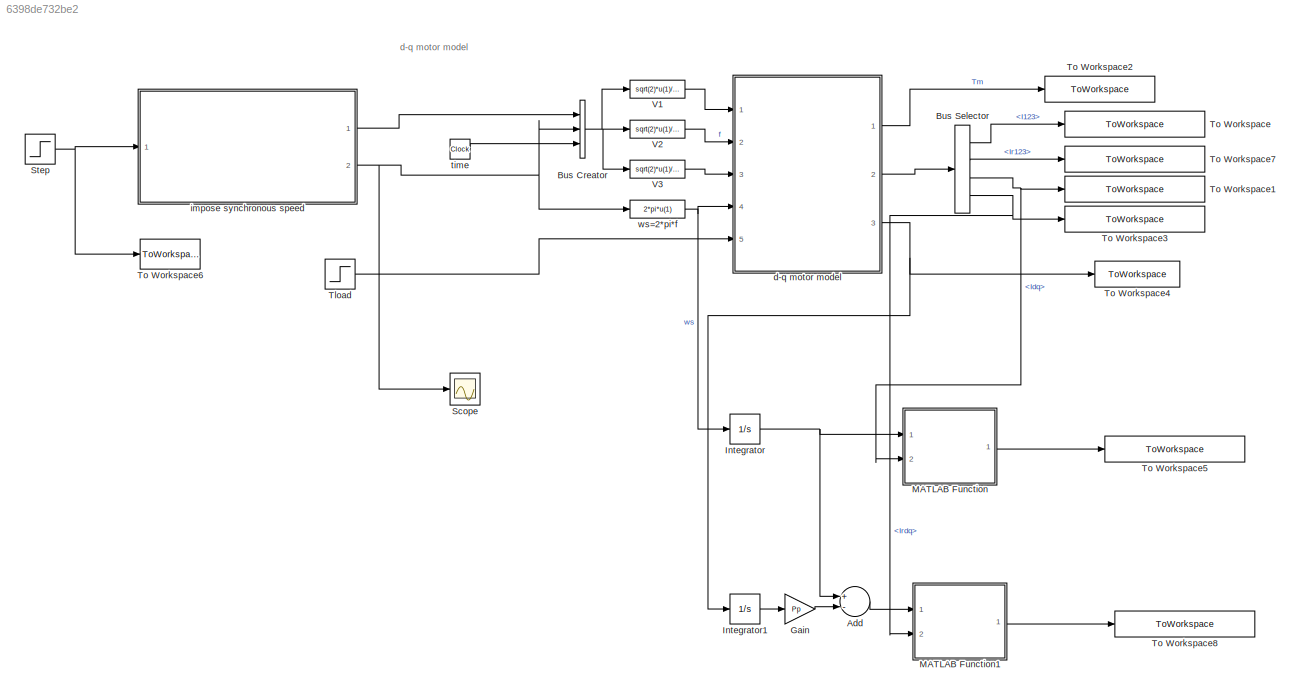
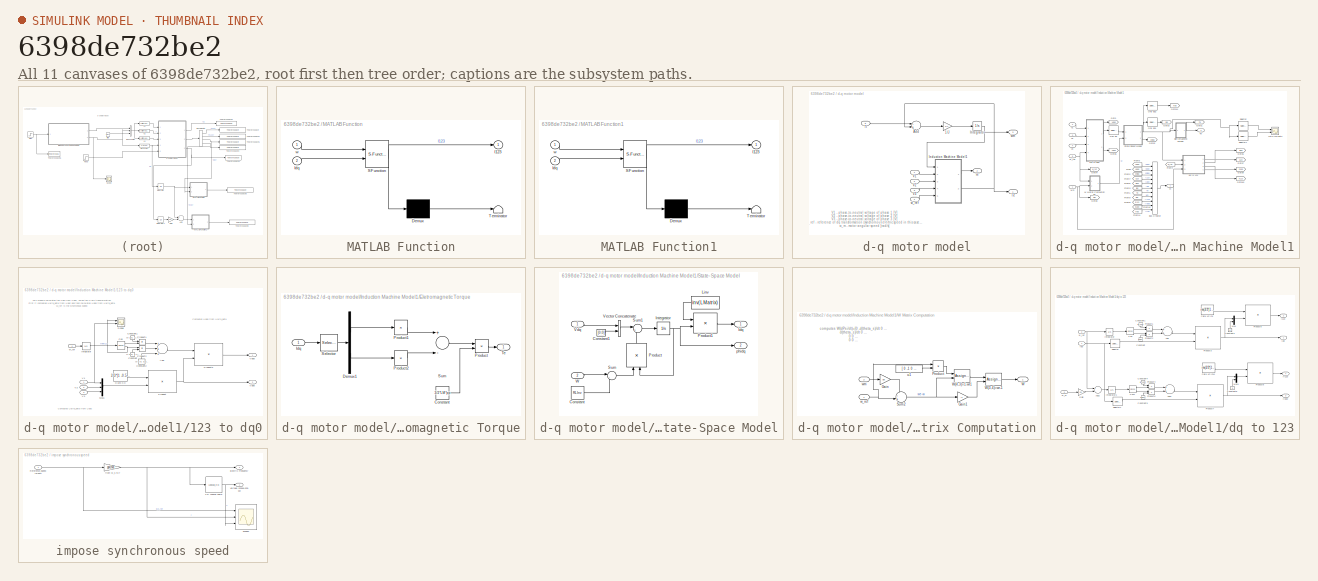
[diagram: thumbnail index - all 11 canvases of the model, root first then tree order]
MODEL slx_6398de732be2
KIND model
CONFIG AbsTol = auto
CONFIG EnableMultiTasking = off
CONFIG FixedStep = auto
CONFIG MaxStep = 1e-4
CONFIG MinStep = auto
CONFIG RelTol = 1e-4
CONFIG SampleTimeConstraint = Unconstrained
CONFIG Solver = VariableStepAuto
CONFIG SolverName = VariableStepAuto
CONFIG StartTime = 0.0
CONFIG StopTime = 10
BLOCK [Sum] Add
  InputSameDT = off
  Inputs = +-
  OutDataTypeStr = Inherit: Inherit via internal rule
  Ports = [2, 1]
  SaturateOnIntegerOverflow = off
BLOCK [BusCreator] Bus Creator
  DisplayOption = bar
  InheritFromInputs = on
  Inputs = 3
  Ports = [3, 1]
BLOCK [BusSelector] Bus Selector
  OutputAsBus = off
  OutputSignals = I123,Ir123,Idq,Irdq
  Ports = [1, 4]
BLOCK [Gain] Gain
  Gain = Pp
  OutDataTypeStr = Inherit: Inherit via internal rule
  ParamDataTypeStr = Inherit: Inherit via internal rule
  SaturateOnIntegerOverflow = off
BLOCK [Integrator] Integrator
  Ports = [1, 1]
BLOCK [Integrator] Integrator1
  Ports = [1, 1]
BLOCK [SubSystem] MATLAB Function
  ErrorFcn = Stateflow.Translate.translate
  PermitHierarchicalResolution = ExplicitOnly
  Ports = [2, 1]
  RequestExecContextInheritance = off
  SFBlockType = MATLAB Function
  TreatAsAtomicUnit = on
BLOCK [Demux] MATLAB Function/ Demux 
  Outputs = 1
  Ports = [1, 1]
BLOCK [S-Function] MATLAB Function/ SFunction 
  EnableBusSupport = on
  FunctionName = sf_sfun
  PortCounts = [2 2]
  Ports = [2, 2]
  SFcnIsStateOwnerBlock = off
  SFunctionDeploymentMode = off
  Tag = Stateflow S-Function 2
BLOCK [Terminator] MATLAB Function/ Terminator 
BLOCK [Outport] MATLAB Function/I123
  IconDisplay = Port number
BLOCK [Inport] MATLAB Function/Idq
  IconDisplay = Port number
  Port = 2
BLOCK [Inport] MATLAB Function/w
  IconDisplay = Port number
BLOCK [SubSystem] MATLAB Function1
  ErrorFcn = Stateflow.Translate.translate
  PermitHierarchicalResolution = ExplicitOnly
  Ports = [2, 1]
  RequestExecContextInheritance = off
  SFBlockType = MATLAB Function
  TreatAsAtomicUnit = on
BLOCK [Demux] MATLAB Function1/ Demux 
  Outputs = 1
  Ports = [1, 1]
BLOCK [S-Function] MATLAB Function1/ SFunction 
  EnableBusSupport = on
  FunctionName = sf_sfun
  PortCounts = [2 2]
  Ports = [2, 2]
  SFcnIsStateOwnerBlock = off
  SFunctionDeploymentMode = off
  Tag = Stateflow S-Function 1
BLOCK [Terminator] MATLAB Function1/ Terminator 
BLOCK [Outport] MATLAB Function1/I123
  IconDisplay = Port number
BLOCK [Inport] MATLAB Function1/Idq
  IconDisplay = Port number
  Port = 2
BLOCK [Inport] MATLAB Function1/w
  IconDisplay = Port number
BLOCK [Scope] Scope
  Floating = off
  NumInputPorts = 1
  Ports = [1]
  ScopeSpecificationString = Simulink.scopes.TimeScopeBlockCfg('CurrentConfiguration', extmgr.ConfigurationSet(extmgr.Configuration('Core','General UI',true),extmgr.Configuration('Core','Source UI',true),extmgr.Configuration('Sources','WiredSimulink',true,'DataLoggingVariableName','ScopeData1'),extmgr.Configuration('Visuals','Time Domain',true,'SerializedDisplays',{struct('MinYLimReal','-15.625','MaxYLimReal','140.625','YLabe...<+1383ch>
BLOCK [Step] Step
  After = 3750
  SampleTime = 0
BLOCK [Step] Tload 
  After = 40
  SampleTime = 0
  Time = 5
BLOCK [ToWorkspace] To Workspace
  FixptAsFi = on
  MaxDataPoints = inf
  Ports = [1]
  SampleTime = -1
  SaveFormat = Timeseries
  VariableName = stator_currents
BLOCK [ToWorkspace] To Workspace1
  FixptAsFi = on
  MaxDataPoints = inf
  Ports = [1]
  SampleTime = -1
  SaveFormat = Timeseries
  VariableName = idq_model
BLOCK [ToWorkspace] To Workspace2
  FixptAsFi = on
  MaxDataPoints = inf
  Ports = [1]
  SampleTime = -1
  SaveFormat = Timeseries
  VariableName = Torque
BLOCK [ToWorkspace] To Workspace3
  FixptAsFi = on
  MaxDataPoints = inf
  Ports = [1]
  SampleTime = -1
  SaveFormat = Timeseries
  VariableName = irdq_model
BLOCK [ToWorkspace] To Workspace4
  FixptAsFi = on
  MaxDataPoints = inf
  Ports = [1]
  SampleTime = -1
  SaveFormat = Timeseries
  VariableName = speed
BLOCK [ToWorkspace] To Workspace5
  FixptAsFi = on
  MaxDataPoints = inf
  Ports = [1]
  SampleTime = -1
  SaveFormat = Timeseries
  VariableName = my_I123
BLOCK [ToWorkspace] To Workspace6
  FixptAsFi = on
  MaxDataPoints = inf
  Ports = [1]
  SampleTime = -1
  SaveFormat = Timeseries
  VariableName = ref_speed
BLOCK [ToWorkspace] To Workspace7
  FixptAsFi = on
  MaxDataPoints = inf
  Ports = [1]
  SampleTime = -1
  SaveFormat = Timeseries
  VariableName = rotor_currents
BLOCK [ToWorkspace] To Workspace8
  FixptAsFi = on
  MaxDataPoints = inf
  Ports = [1]
  SampleTime = -1
  SaveFormat = Timeseries
  VariableName = my_Ir123
BLOCK [Fcn] V1
  Expr = sqrt(2)*u(1)/sqrt(3)*cos(2*pi*u(2)*u(3))
BLOCK [Fcn] V2
  Expr = sqrt(2)*u(1)/sqrt(3)*cos(2*pi*u(2)*u(3)-2*pi/3)
BLOCK [Fcn] V3
  Expr = sqrt(2)*u(1)/sqrt(3)*cos(2*pi*u(2)*u(3)+2*pi/3)
BLOCK [SubSystem] d-q motor model
  Ports = [5, 3]
  RequestExecContextInheritance = off
BLOCK [Gain] d-q motor model/1//J
  Gain = 1/J
  OutDataTypeStr = Inherit: Inherit via internal rule
  ParamDataTypeStr = Inherit: Inherit via internal rule
  SaturateOnIntegerOverflow = off
BLOCK [Sum] d-q motor model/Add
  InputSameDT = off
  Inputs = -+
  OutDataTypeStr = Inherit: Inherit via internal rule
  Ports = [2, 1]
  SaturateOnIntegerOverflow = off
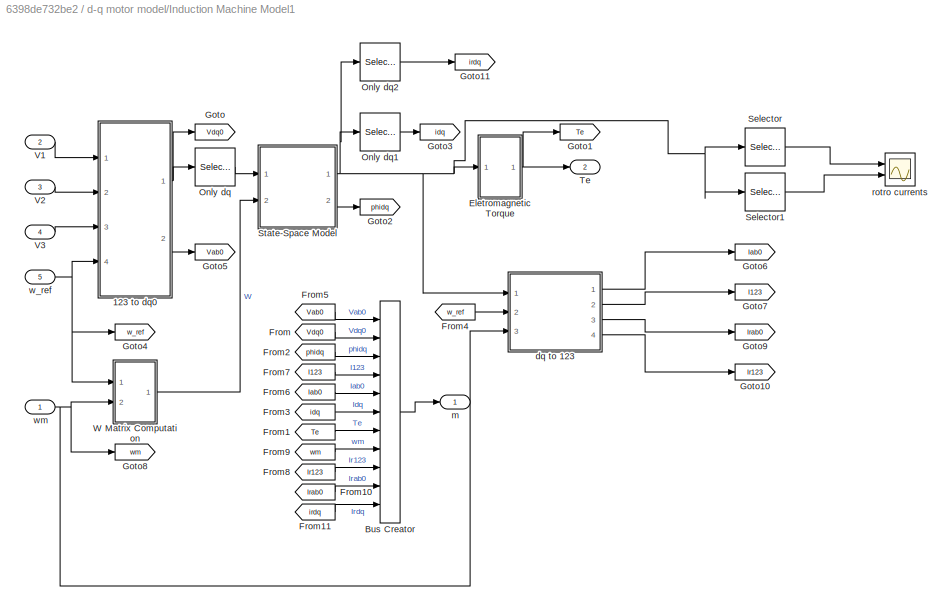
BLOCK [SubSystem] d-q motor model/Induction Machine Model1
  Ports = [5, 2]
  RequestExecContextInheritance = off
BLOCK [SubSystem] d-q motor model/Induction Machine Model1/123 to dq0
  Ports = [4, 2]
  RequestExecContextInheritance = off
BLOCK [Sum] d-q motor model/Induction Machine Model1/123 to dq0/Add
  InputSameDT = off
  Inputs = +++
  OutDataTypeStr = Inherit: Inherit via internal rule
  Ports = [3, 1]
  SaturateOnIntegerOverflow = off
BLOCK [Constant] d-q motor model/Induction Machine Model1/123 to dq0/Clark KC
  Value = 2/3*[1 -0.5 -0.5; 0 sqrt(3)/2 -sqrt(3)/2; 1/2 1/2 1/2]
BLOCK [Constant] d-q motor model/Induction Machine Model1/123 to dq0/Constant
  Value = [1 0 0; 0 1 0; 0 0 0]
BLOCK [Constant] d-q motor model/Induction Machine Model1/123 to dq0/Constant1
  Value = [0 1 0; -1 0 0; 0 0 0]
BLOCK [Constant] d-q motor model/Induction Machine Model1/123 to dq0/Constant2
  Value = [0 0 0; 0 0 0; 0 0 1]
BLOCK [Trigonometry] d-q motor model/Induction Machine Model1/123 to dq0/Cos
  Operator = sincos
  Ports = [1, 2]
BLOCK [Integrator] d-q motor model/Induction Machine Model1/123 to dq0/Integrator
  Ports = [1, 1]
BLOCK [Mux] d-q motor model/Induction Machine Model1/123 to dq0/Mux1
  DisplayOption = bar
  Inputs = 3
  Ports = [3, 1]
BLOCK [Product] d-q motor model/Induction Machine Model1/123 to dq0/Product
  InputSameDT = off
  Multiplication = Matrix(*)
  OutDataTypeStr = Inherit: Inherit via internal rule
  Ports = [2, 1]
  RndMeth = Floor
  SaturateOnIntegerOverflow = off
BLOCK [Product] d-q motor model/Induction Machine Model1/123 to dq0/Product1
  InputSameDT = off
  OutDataTypeStr = Inherit: Inherit via internal rule
  Ports = [2, 1]
  RndMeth = Floor
  SaturateOnIntegerOverflow = off
BLOCK [Product] d-q motor model/Induction Machine Model1/123 to dq0/Product2
  InputSameDT = off
  OutDataTypeStr = Inherit: Inherit via internal rule
  Ports = [2, 1]
  RndMeth = Floor
  SaturateOnIntegerOverflow = off
BLOCK [Product] d-q motor model/Induction Machine Model1/123 to dq0/Product3
  InputSameDT = off
  Multiplication = Matrix(*)
  OutDataTypeStr = Inherit: Inherit via internal rule
  Ports = [2, 1]
  RndMeth = Floor
  SaturateOnIntegerOverflow = off
BLOCK [Scope] d-q motor model/Induction Machine Model1/123 to dq0/Scope
  Floating = off
  NumInputPorts = 2
  Ports = [2]
  ScopeSpecificationString = Simulink.scopes.TimeScopeBlockCfg('CurrentConfiguration', extmgr.ConfigurationSet(extmgr.Configuration('Core','General UI',true),extmgr.Configuration('Core','Source UI',true),extmgr.Configuration('Sources','WiredSimulink',true,'DataLoggingVariableName','ScopeData4'),extmgr.Configuration('Visuals','Time Domain',true,'SerializedDisplays',{struct('MinYLimReal','-76.99014','MaxYLimReal','76.91085','YL...<+1475ch>
BLOCK [Inport] d-q motor model/Induction Machine Model1/123 to dq0/V1
  IconDisplay = Port number
BLOCK [Inport] d-q motor model/Induction Machine Model1/123 to dq0/V2
  IconDisplay = Port number
  Port = 2
BLOCK [Inport] d-q motor model/Induction Machine Model1/123 to dq0/V3
  IconDisplay = Port number
  Port = 3
BLOCK [Outport] d-q motor model/Induction Machine Model1/123 to dq0/Vab0
  IconDisplay = Port number
  Port = 2
  VectorParamsAs1DForOutWhenUnconnected = off
BLOCK [Outport] d-q motor model/Induction Machine Model1/123 to dq0/Vdq0
  IconDisplay = Port number
  VectorParamsAs1DForOutWhenUnconnected = off
BLOCK [Inport] d-q motor model/Induction Machine Model1/123 to dq0/w_ref
  IconDisplay = Port number
  Port = 4
BLOCK [BusCreator] d-q motor model/Induction Machine Model1/Bus Creator
  DisplayOption = bar
  InheritFromInputs = on
  Inputs = 11
  Ports = [11, 1]
BLOCK [SubSystem] d-q motor model/Induction Machine Model1/Eletromagnetic Torque
  Ports = [1, 1]
  RequestExecContextInheritance = off
BLOCK [Constant] d-q motor model/Induction Machine Model1/Eletromagnetic Torque/Constant
  Value = 3/2*LM*pp
BLOCK [Demux] d-q motor model/Induction Machine Model1/Eletromagnetic Torque/Demux1
  DisplayOption = bar
  Outputs = 2
  Ports = [1, 2]
BLOCK [Inport] d-q motor model/Induction Machine Model1/Eletromagnetic Torque/Idq
  IconDisplay = Port number
BLOCK [Product] d-q motor model/Induction Machine Model1/Eletromagnetic Torque/Product
  InputSameDT = off
  OutDataTypeStr = Inherit: Inherit via internal rule
  Ports = [2, 1]
  RndMeth = Floor
  SaturateOnIntegerOverflow = off
BLOCK [Product] d-q motor model/Induction Machine Model1/Eletromagnetic Torque/Product1
  InputSameDT = off
  Inputs = 1
  OutDataTypeStr = Inherit: Inherit via internal rule
  Ports = [1, 1]
  RndMeth = Floor
  SaturateOnIntegerOverflow = off
BLOCK [Product] d-q motor model/Induction Machine Model1/Eletromagnetic Torque/Product2
  InputSameDT = off
  Inputs = 1
  OutDataTypeStr = Inherit: Inherit via internal rule
  Ports = [1, 1]
  RndMeth = Floor
  SaturateOnIntegerOverflow = off
BLOCK [Selector] d-q motor model/Induction Machine Model1/Eletromagnetic Torque/Selector
  IndexOptions = Index vector (dialog)
  Indices = [2 3 1 4]
  InputPortWidth = 4
  OutputSizes = 1
  Ports = [1, 1]
BLOCK [Sum] d-q motor model/Induction Machine Model1/Eletromagnetic Torque/Sum
  InputSameDT = off
  Inputs = +-
  OutDataTypeStr = Inherit: Inherit via internal rule
  Ports = [2, 1]
  SaturateOnIntegerOverflow = off
BLOCK [Outport] d-q motor model/Induction Machine Model1/Eletromagnetic Torque/Te
  IconDisplay = Port number
  VectorParamsAs1DForOutWhenUnconnected = off
BLOCK [From] d-q motor model/Induction Machine Model1/From
  GotoTag = Vdq0
BLOCK [From] d-q motor model/Induction Machine Model1/From1
  GotoTag = Te
BLOCK [From] d-q motor model/Induction Machine Model1/From10
  GotoTag = Irab0
BLOCK [From] d-q motor model/Induction Machine Model1/From11
  GotoTag = irdq
BLOCK [From] d-q motor model/Induction Machine Model1/From2
  GotoTag = phidq
BLOCK [From] d-q motor model/Induction Machine Model1/From3
  GotoTag = idq
BLOCK [From] d-q motor model/Induction Machine Model1/From4
  GotoTag = w_ref
BLOCK [From] d-q motor model/Induction Machine Model1/From5
  GotoTag = Vab0
BLOCK [From] d-q motor model/Induction Machine Model1/From6
  GotoTag = Iab0
BLOCK [From] d-q motor model/Induction Machine Model1/From7
  GotoTag = I123
BLOCK [From] d-q motor model/Induction Machine Model1/From8
  GotoTag = Ir123
BLOCK [From] d-q motor model/Induction Machine Model1/From9
  GotoTag = wm
BLOCK [Goto] d-q motor model/Induction Machine Model1/Goto
  GotoTag = Vdq0
BLOCK [Goto] d-q motor model/Induction Machine Model1/Goto1
  GotoTag = Te
BLOCK [Goto] d-q motor model/Induction Machine Model1/Goto10
  GotoTag = Ir123
BLOCK [Goto] d-q motor model/Induction Machine Model1/Goto11
  GotoTag = irdq
BLOCK [Goto] d-q motor model/Induction Machine Model1/Goto2
  GotoTag = phidq
BLOCK [Goto] d-q motor model/Induction Machine Model1/Goto3
  GotoTag = idq
BLOCK [Goto] d-q motor model/Induction Machine Model1/Goto4
  GotoTag = w_ref
BLOCK [Goto] d-q motor model/Induction Machine Model1/Goto5
  GotoTag = Vab0
BLOCK [Goto] d-q motor model/Induction Machine Model1/Goto6
  GotoTag = Iab0
BLOCK [Goto] d-q motor model/Induction Machine Model1/Goto7
  GotoTag = I123
BLOCK [Goto] d-q motor model/Induction Machine Model1/Goto8
  GotoTag = wm
BLOCK [Goto] d-q motor model/Induction Machine Model1/Goto9
  GotoTag = Irab0
BLOCK [Selector] d-q motor model/Induction Machine Model1/Only dq
  IndexOptions = Index vector (dialog)
  Indices = [1 2]
  InputPortWidth = 3
  OutputSizes = 1
  Ports = [1, 1]
BLOCK [Selector] d-q motor model/Induction Machine Model1/Only dq1
  IndexOptions = Index vector (dialog)
  Indices = [1 2]
  InputPortWidth = 4
  OutputSizes = 1
  Ports = [1, 1]
BLOCK [Selector] d-q motor model/Induction Machine Model1/Only dq2
  IndexOptions = Index vector (dialog)
  Indices = [3 4]
  InputPortWidth = 4
  OutputSizes = 1
  Ports = [1, 1]
BLOCK [Selector] d-q motor model/Induction Machine Model1/Selector
  IndexOptions = Index vector (dialog)
  Indices = [1 2]
  InputPortWidth = 4
  OutputSizes = 1
  Ports = [1, 1]
BLOCK [Selector] d-q motor model/Induction Machine Model1/Selector1
  IndexOptions = Index vector (dialog)
  Indices = [3 4]
  InputPortWidth = 4
  OutputSizes = 1
  Ports = [1, 1]
BLOCK [SubSystem] d-q motor model/Induction Machine Model1/State-Space Model
  Ports = [2, 2]
  RequestExecContextInheritance = off
BLOCK [Constant] d-q motor model/Induction Machine Model1/State-Space Model/Constant
  Value = RLInv
  VectorParams1D = off
BLOCK [Constant] d-q motor model/Induction Machine Model1/State-Space Model/Constant1
  Value = [0;0]
BLOCK [Outport] d-q motor model/Induction Machine Model1/State-Space Model/Idq
  IconDisplay = Port number
  VectorParamsAs1DForOutWhenUnconnected = off
BLOCK [Integrator] d-q motor model/Induction Machine Model1/State-Space Model/Integrator
  Ports = [1, 1]
BLOCK [Constant] d-q motor model/Induction Machine Model1/State-Space Model/Linv
  Value = inv(LMatrix)
  VectorParams1D = off
BLOCK [Product] d-q motor model/Induction Machine Model1/State-Space Model/Product
  InputSameDT = off
  Multiplication = Matrix(*)
  OutDataTypeStr = Inherit: Inherit via internal rule
  Ports = [2, 1]
  RndMeth = Floor
  SaturateOnIntegerOverflow = off
BLOCK [Product] d-q motor model/Induction Machine Model1/State-Space Model/Product1
  InputSameDT = off
  Multiplication = Matrix(*)
  OutDataTypeStr = Inherit: Inherit via internal rule
  Ports = [2, 1]
  RndMeth = Floor
  SaturateOnIntegerOverflow = off
BLOCK [Sum] d-q motor model/Induction Machine Model1/State-Space Model/Sum
  IconShape = round
  InputSameDT = off
  Inputs = |--
  OutDataTypeStr = Inherit: Inherit via internal rule
  Ports = [2, 1]
  SaturateOnIntegerOverflow = off
BLOCK [Sum] d-q motor model/Induction Machine Model1/State-Space Model/Sum1
  IconShape = round
  InputSameDT = off
  Inputs = |++
  OutDataTypeStr = Inherit: Inherit via internal rule
  Ports = [2, 1]
  SaturateOnIntegerOverflow = off
BLOCK [Inport] d-q motor model/Induction Machine Model1/State-Space Model/Vdq
  IconDisplay = Port number
BLOCK [Concatenate] d-q motor model/Induction Machine Model1/State-Space Model/Vector Concatenate
  Ports = [2, 1]
BLOCK [Inport] d-q motor model/Induction Machine Model1/State-Space Model/W
  IconDisplay = Port number
  Port = 2
BLOCK [Outport] d-q motor model/Induction Machine Model1/State-Space Model/phidq
  IconDisplay = Port number
  Port = 2
  VectorParamsAs1DForOutWhenUnconnected = off
BLOCK [Outport] d-q motor model/Induction Machine Model1/Te
  IconDisplay = Port number
  Port = 2
  VectorParamsAs1DForOutWhenUnconnected = off
BLOCK [Inport] d-q motor model/Induction Machine Model1/V1
  IconDisplay = Port number
  Port = 2
BLOCK [Inport] d-q motor model/Induction Machine Model1/V2
  IconDisplay = Port number
  Port = 3
BLOCK [Inport] d-q motor model/Induction Machine Model1/V3
  IconDisplay = Port number
  Port = 4
BLOCK [SubSystem] d-q motor model/Induction Machine Model1/W Matrix Computation
  Ports = [2, 1]
  RequestExecContextInheritance = off
BLOCK [Gain] d-q motor model/Induction Machine Model1/W Matrix Computation/Gain
  Gain = pp
  OutDataTypeStr = Inherit: Inherit via internal rule
  ParamDataTypeStr = Inherit: Inherit via internal rule
  SaturateOnIntegerOverflow = off
BLOCK [Gain] d-q motor model/Induction Machine Model1/W Matrix Computation/Gain1
  Gain = -1
BLOCK [Product] d-q motor model/Induction Machine Model1/W Matrix Computation/Product
  InputSameDT = off
  OutDataTypeStr = Inherit: Inherit via internal rule
  Ports = [2, 1]
  RndMeth = Floor
  SaturateOnIntegerOverflow = off
BLOCK [Sum] d-q motor model/Induction Machine Model1/W Matrix Computation/Sum2
  IconShape = round
  Inputs = -+|
  Ports = [2, 1]
BLOCK [Outport] d-q motor model/Induction Machine Model1/W Matrix Computation/W
  IconDisplay = Port number
  InitialOutput = 0
  VectorParamsAs1DForOutWhenUnconnected = off
BLOCK [Assignment] d-q motor model/Induction Machine Model1/W Matrix Computation/W(3,4)=wr-1
  IndexOptions = Index vector (dialog),Index vector (dialog)
  Indices = 3,4
  NumberOfDimensions = 2
  OutputSizes = 1,1
  Ports = [2, 1]
BLOCK [Assignment] d-q motor model/Induction Machine Model1/W Matrix Computation/W(4,3)=1-wr1
  IndexOptions = Index vector (dialog),Index vector (dialog)
  Indices = 4,3
  NumberOfDimensions = 2
  OutputSizes = 1,1
  Ports = [2, 1]
BLOCK [Constant] d-q motor model/Induction Machine Model1/W Matrix Computation/u1
  Value = [ 0 -1  0  0; 1  0  0  0;  0  0  0  0;  0  0  0  0]
BLOCK [Inport] d-q motor model/Induction Machine Model1/W Matrix Computation/w_ref
  IconDisplay = Port number
BLOCK [Inport] d-q motor model/Induction Machine Model1/W Matrix Computation/wm
  IconDisplay = Port number
  Port = 2
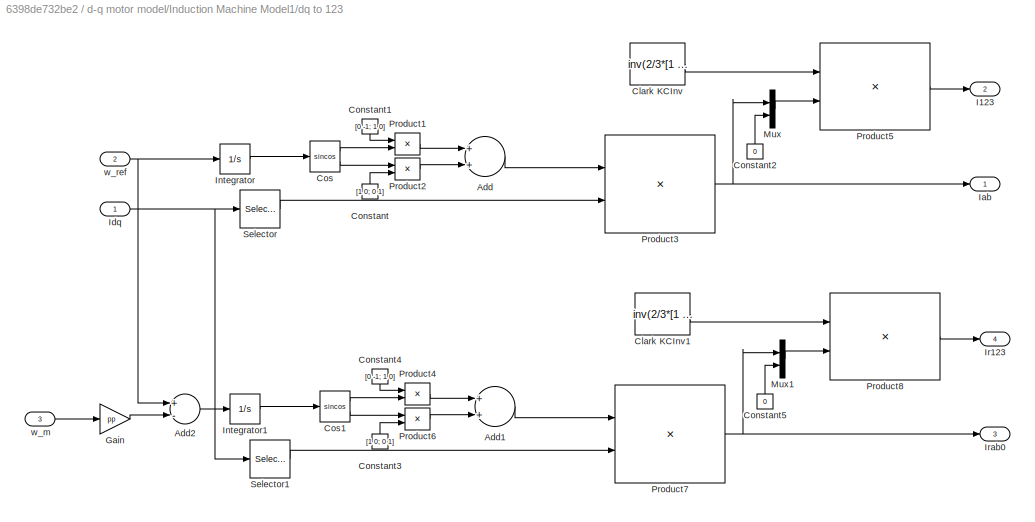
BLOCK [SubSystem] d-q motor model/Induction Machine Model1/dq to 123
  Ports = [3, 4]
  RequestExecContextInheritance = off
BLOCK [Sum] d-q motor model/Induction Machine Model1/dq to 123/Add
  InputSameDT = off
  OutDataTypeStr = Inherit: Inherit via internal rule
  Ports = [2, 1]
  SaturateOnIntegerOverflow = off
BLOCK [Sum] d-q motor model/Induction Machine Model1/dq to 123/Add1
  InputSameDT = off
  OutDataTypeStr = Inherit: Inherit via internal rule
  Ports = [2, 1]
  SaturateOnIntegerOverflow = off
BLOCK [Sum] d-q motor model/Induction Machine Model1/dq to 123/Add2
  InputSameDT = off
  Inputs = +-
  OutDataTypeStr = Inherit: Inherit via internal rule
  Ports = [2, 1]
  SaturateOnIntegerOverflow = off
BLOCK [Constant] d-q motor model/Induction Machine Model1/dq to 123/Clark KCInv
  Value = inv(2/3*[1 -0.5 -0.5; 0 sqrt(3)/2 -sqrt(3)/2; 1/sqrt(2) 1/sqrt(2) 1/sqrt(2)])
BLOCK [Constant] d-q motor model/Induction Machine Model1/dq to 123/Clark KCInv1
  Value = inv(2/3*[1 -0.5 -0.5; 0 sqrt(3)/2 -sqrt(3)/2; 1/sqrt(2) 1/sqrt(2) 1/sqrt(2)])
BLOCK [Constant] d-q motor model/Induction Machine Model1/dq to 123/Constant
  Value = [1 0; 0 1]
BLOCK [Constant] d-q motor model/Induction Machine Model1/dq to 123/Constant1
  Value = [0 -1; 1 0]
BLOCK [Constant] d-q motor model/Induction Machine Model1/dq to 123/Constant2
  Value = 0
BLOCK [Constant] d-q motor model/Induction Machine Model1/dq to 123/Constant3
  Value = [1 0; 0 1]
BLOCK [Constant] d-q motor model/Induction Machine Model1/dq to 123/Constant4
  Value = [0 -1; 1 0]
BLOCK [Constant] d-q motor model/Induction Machine Model1/dq to 123/Constant5
  Value = 0
BLOCK [Trigonometry] d-q motor model/Induction Machine Model1/dq to 123/Cos
  Operator = sincos
  Ports = [1, 2]
BLOCK [Trigonometry] d-q motor model/Induction Machine Model1/dq to 123/Cos1
  Operator = sincos
  Ports = [1, 2]
BLOCK [Gain] d-q motor model/Induction Machine Model1/dq to 123/Gain
  Gain = pp
  OutDataTypeStr = Inherit: Inherit via internal rule
  ParamDataTypeStr = Inherit: Inherit via internal rule
  SaturateOnIntegerOverflow = off
BLOCK [Outport] d-q motor model/Induction Machine Model1/dq to 123/I123
  IconDisplay = Port number
  Port = 2
  VectorParamsAs1DForOutWhenUnconnected = off
BLOCK [Outport] d-q motor model/Induction Machine Model1/dq to 123/Iab
  IconDisplay = Port number
  VectorParamsAs1DForOutWhenUnconnected = off
BLOCK [Inport] d-q motor model/Induction Machine Model1/dq to 123/Idq
  IconDisplay = Port number
BLOCK [Integrator] d-q motor model/Induction Machine Model1/dq to 123/Integrator
  Ports = [1, 1]
BLOCK [Integrator] d-q motor model/Induction Machine Model1/dq to 123/Integrator1
  Ports = [1, 1]
BLOCK [Outport] d-q motor model/Induction Machine Model1/dq to 123/Ir123
  IconDisplay = Port number
  Port = 4
  VectorParamsAs1DForOutWhenUnconnected = off
BLOCK [Outport] d-q motor model/Induction Machine Model1/dq to 123/Irab0
  IconDisplay = Port number
  Port = 3
  VectorParamsAs1DForOutWhenUnconnected = off
BLOCK [Mux] d-q motor model/Induction Machine Model1/dq to 123/Mux
  DisplayOption = bar
  Inputs = 2
  Ports = [2, 1]
BLOCK [Mux] d-q motor model/Induction Machine Model1/dq to 123/Mux1
  DisplayOption = bar
  Inputs = 2
  Ports = [2, 1]
BLOCK [Product] d-q motor model/Induction Machine Model1/dq to 123/Product1
  InputSameDT = off
  OutDataTypeStr = Inherit: Inherit via internal rule
  Ports = [2, 1]
  RndMeth = Floor
  SaturateOnIntegerOverflow = off
BLOCK [Product] d-q motor model/Induction Machine Model1/dq to 123/Product2
  InputSameDT = off
  OutDataTypeStr = Inherit: Inherit via internal rule
  Ports = [2, 1]
  RndMeth = Floor
  SaturateOnIntegerOverflow = off
BLOCK [Product] d-q motor model/Induction Machine Model1/dq to 123/Product3
  InputSameDT = off
  Multiplication = Matrix(*)
  OutDataTypeStr = Inherit: Inherit via internal rule
  Ports = [2, 1]
  RndMeth = Floor
  SaturateOnIntegerOverflow = off
BLOCK [Product] d-q motor model/Induction Machine Model1/dq to 123/Product4
  InputSameDT = off
  OutDataTypeStr = Inherit: Inherit via internal rule
  Ports = [2, 1]
  RndMeth = Floor
  SaturateOnIntegerOverflow = off
BLOCK [Product] d-q motor model/Induction Machine Model1/dq to 123/Product5
  InputSameDT = off
  Multiplication = Matrix(*)
  OutDataTypeStr = Inherit: Inherit via internal rule
  Ports = [2, 1]
  RndMeth = Floor
  SaturateOnIntegerOverflow = off
BLOCK [Product] d-q motor model/Induction Machine Model1/dq to 123/Product6
  InputSameDT = off
  OutDataTypeStr = Inherit: Inherit via internal rule
  Ports = [2, 1]
  RndMeth = Floor
  SaturateOnIntegerOverflow = off
BLOCK [Product] d-q motor model/Induction Machine Model1/dq to 123/Product7
  InputSameDT = off
  Multiplication = Matrix(*)
  OutDataTypeStr = Inherit: Inherit via internal rule
  Ports = [2, 1]
  RndMeth = Floor
  SaturateOnIntegerOverflow = off
BLOCK [Product] d-q motor model/Induction Machine Model1/dq to 123/Product8
  InputSameDT = off
  Multiplication = Matrix(*)
  OutDataTypeStr = Inherit: Inherit via internal rule
  Ports = [2, 1]
  RndMeth = Floor
  SaturateOnIntegerOverflow = off
BLOCK [Selector] d-q motor model/Induction Machine Model1/dq to 123/Selector
  IndexOptions = Index vector (dialog)
  Indices = [1 2]
  InputPortWidth = 4
  OutputSizes = 1
  Ports = [1, 1]
BLOCK [Selector] d-q motor model/Induction Machine Model1/dq to 123/Selector1
  IndexOptions = Index vector (dialog)
  Indices = [3 4]
  InputPortWidth = 4
  OutputSizes = 1
  Ports = [1, 1]
BLOCK [Inport] d-q motor model/Induction Machine Model1/dq to 123/w_m
  IconDisplay = Port number
  Port = 3
BLOCK [Inport] d-q motor model/Induction Machine Model1/dq to 123/w_ref
  IconDisplay = Port number
  Port = 2
BLOCK [Outport] d-q motor model/Induction Machine Model1/m
  IconDisplay = Port number
  VectorParamsAs1DForOutWhenUnconnected = off
BLOCK [Scope] d-q motor model/Induction Machine Model1/rotro currents
  Floating = off
  NumInputPorts = 2
  Ports = [2]
  ScopeSpecificationString = Simulink.scopes.TimeScopeBlockCfg('CurrentConfiguration', extmgr.ConfigurationSet(extmgr.Configuration('Core','General UI',true),extmgr.Configuration('Core','Source UI',true),extmgr.Configuration('Sources','WiredSimulink',true,'DataLoggingVariableName','ScopeData1'),extmgr.Configuration('Visuals','Time Domain',true,'SerializedDisplays',{struct('MinYLimReal','-1285.43228','MaxYLimReal','1286.2581',...<+2219ch>
BLOCK [Inport] d-q motor model/Induction Machine Model1/w_ref
  IconDisplay = Port number
  Port = 5
BLOCK [Inport] d-q motor model/Induction Machine Model1/wm
  IconDisplay = Port number
BLOCK [Integrator] d-q motor model/Integrator
  Ports = [1, 1]
BLOCK [Outport] d-q motor model/Te
  IconDisplay = Port number
  VectorParamsAs1DForOutWhenUnconnected = off
BLOCK [Inport] d-q motor model/Tl
  IconDisplay = Port number
  Port = 5
BLOCK [Inport] d-q motor model/V1
  IconDisplay = Port number
BLOCK [Inport] d-q motor model/V2
  IconDisplay = Port number
  Port = 2
BLOCK [Inport] d-q motor model/V3
  IconDisplay = Port number
  Port = 3
BLOCK [Outport] d-q motor model/m
  IconDisplay = Port number
  Port = 2
  VectorParamsAs1DForOutWhenUnconnected = off
BLOCK [Inport] d-q motor model/w_ref
  IconDisplay = Port number
  Port = 4
BLOCK [Outport] d-q motor model/wm
  IconDisplay = Port number
  Port = 3
  VectorParamsAs1DForOutWhenUnconnected = off
BLOCK [SubSystem] impose synchronous speed
  Ports = [1, 2]
  RequestExecContextInheritance = off
BLOCK [Lookup_n-D] impose synchronous speed/1-D Lookup Table
  BreakpointsForDimension1 = [0 76 220 305]
  InternalRulePriority = Speed
  NumberOfTableDimensions = 1
  Ports = [1, 1]
  RndMeth = Simplest
  Table = [0 76 121 121]
BLOCK [Outport] impose synchronous speed/Electric Frequency
  IconDisplay = Port number
  Port = 2
  VectorParamsAs1DForOutWhenUnconnected = off
BLOCK [Inport] impose synchronous speed/Reference_Speed [RPM]
  IconDisplay = Port number
BLOCK [Scope] impose synchronous speed/Scope2
  Floating = off
  NumInputPorts = 3
  Ports = [3]
  ScopeSpecificationString = Simulink.scopes.TimeScopeBlockCfg('CurrentConfiguration', extmgr.ConfigurationSet(extmgr.Configuration('Core','General UI',true),extmgr.Configuration('Core','Source UI',true),extmgr.Configuration('Sources','WiredSimulink',true,'DataLoggingVariableName','ScopeData1'),extmgr.Configuration('Visuals','Time Domain',true,'SerializedDisplays',{struct('MinYLimReal','-500.00000','MaxYLimReal','4500.00000',...<+2803ch>
BLOCK [Outport] impose synchronous speed/Voltage (phase-phase)
  IconDisplay = Port number
  VectorParamsAs1DForOutWhenUnconnected = off
BLOCK [Gain] impose synchronous speed/from w_s to f
  Gain = pp/(60)
  OutDataTypeStr = Inherit: Inherit via internal rule
  ParamDataTypeStr = Inherit: Inherit via internal rule
  SaturateOnIntegerOverflow = off
BLOCK [Clock] time
BLOCK [Fcn] ws=2*pi*f
  Expr = 2*pi*u(1)
ANNOTATION (root): d-q motor model
ANNOTATION d-q motor model: V1 - phase-to-neutral voltage of phase 1 [V] V2 - phase-to-neutral voltage of phase 2 [V] V3 - phase-to-neutral voltage of phase 3 [V] w_ref - reference of dq transformation (synchornous electric speed in this case = 2*pi*f) [rad/s] w_m - motor angular speed [rad/s]
ANNOTATION d-q motor model/Induction Machine Model1/123 to dq0: Computes Ualfa_beta from Uabc
ANNOTATION d-q motor model/Induction Machine Model1/123 to dq0: Computes Udq0 from Ualfa_beta
ANNOTATION d-q motor model/Induction Machine Model1/123 to dq0: This module calculates the Udq from Uabc, using the Clark transformation. First it computed Ualfa_beta from Uabc and then calculates Udq0 from Ualfa_beta . W_ref is the synchronous speed
ANNOTATION d-q motor model/Induction Machine Model1/W Matrix Computation: computes W(dPsi/dt)=[0 -d(theta_s)/dt 0 0; d(theta_s)/dt 0 0 0; 0 0 0 -d(theta_r)/dt; 0 0 d(theta_r)/dt 0;]
LINE Add:1 -> MATLAB Function1:1
NET Bus Creator:1 -> V1:1, V2:1, V3:1
LINE Bus Selector:1 -> To Workspace:1
LINE Bus Selector:2 -> To Workspace7:1
NET Bus Selector:3 -> MATLAB Function:2, To Workspace1:1
NET Bus Selector:4 -> MATLAB Function1:2, To Workspace3:1
LINE Gain:1 -> Add:2
LINE Integrator1:1 -> Gain:1
NET Integrator:1 -> Add:1, MATLAB Function:1
LINE MATLAB Function1:1 -> To Workspace8:1
LINE MATLAB Function:1 -> To Workspace5:1
NET Step:1 -> To Workspace6:1, impose synchronous speed:1
LINE Tload :1 -> d-q motor model:5
LINE V1:1 -> d-q motor model:1
LINE V2:1 -> d-q motor model:2
LINE V3:1 -> d-q motor model:3
LINE d-q motor model/1//J:1 -> d-q motor model/Integrator:1
LINE d-q motor model/Add:1 -> d-q motor model/1//J:1
LINE d-q motor model/Induction Machine Model1/123 to dq0/Add:1 -> d-q motor model/Induction Machine Model1/123 to dq0/Product3:1
LINE d-q motor model/Induction Machine Model1/123 to dq0/Clark KC:1 -> d-q motor model/Induction Machine Model1/123 to dq0/Product:1
LINE d-q motor model/Induction Machine Model1/123 to dq0/Constant1:1 -> d-q motor model/Induction Machine Model1/123 to dq0/Product1:1
LINE d-q motor model/Induction Machine Model1/123 to dq0/Constant2:1 -> d-q motor model/Induction Machine Model1/123 to dq0/Add:3
LINE d-q motor model/Induction Machine Model1/123 to dq0/Constant:1 -> d-q motor model/Induction Machine Model1/123 to dq0/Product2:2
LINE d-q motor model/Induction Machine Model1/123 to dq0/Cos:1 -> d-q motor model/Induction Machine Model1/123 to dq0/Product1:2
NET d-q motor model/Induction Machine Model1/123 to dq0/Cos:2 -> d-q motor model/Induction Machine Model1/123 to dq0/Product2:1, d-q motor model/Induction Machine Model1/123 to dq0/Scope:1
LINE d-q motor model/Induction Machine Model1/123 to dq0/Integrator:1 -> d-q motor model/Induction Machine Model1/123 to dq0/Cos:1
LINE d-q motor model/Induction Machine Model1/123 to dq0/Mux1:1 -> d-q motor model/Induction Machine Model1/123 to dq0/Product:2
LINE d-q motor model/Induction Machine Model1/123 to dq0/Product1:1 -> d-q motor model/Induction Machine Model1/123 to dq0/Add:1
LINE d-q motor model/Induction Machine Model1/123 to dq0/Product2:1 -> d-q motor model/Induction Machine Model1/123 to dq0/Add:2
LINE d-q motor model/Induction Machine Model1/123 to dq0/Product3:1 -> d-q motor model/Induction Machine Model1/123 to dq0/Vdq0:1
NET d-q motor model/Induction Machine Model1/123 to dq0/Product:1 -> d-q motor model/Induction Machine Model1/123 to dq0/Product3:2, d-q motor model/Induction Machine Model1/123 to dq0/Vab0:1
NET d-q motor model/Induction Machine Model1/123 to dq0/V1:1 -> d-q motor model/Induction Machine Model1/123 to dq0/Mux1:1, d-q motor model/Induction Machine Model1/123 to dq0/Scope:2
LINE d-q motor model/Induction Machine Model1/123 to dq0/V2:1 -> d-q motor model/Induction Machine Model1/123 to dq0/Mux1:2
LINE d-q motor model/Induction Machine Model1/123 to dq0/V3:1 -> d-q motor model/Induction Machine Model1/123 to dq0/Mux1:3
LINE d-q motor model/Induction Machine Model1/123 to dq0/w_ref:1 -> d-q motor model/Induction Machine Model1/123 to dq0/Integrator:1
NET d-q motor model/Induction Machine Model1/123 to dq0:1 -> d-q motor model/Induction Machine Model1/Goto:1, d-q motor model/Induction Machine Model1/Only dq:1
LINE d-q motor model/Induction Machine Model1/123 to dq0:2 -> d-q motor model/Induction Machine Model1/Goto5:1
LINE d-q motor model/Induction Machine Model1/Bus Creator:1 -> d-q motor model/Induction Machine Model1/m:1
LINE d-q motor model/Induction Machine Model1/Eletromagnetic Torque/Constant:1 -> d-q motor model/Induction Machine Model1/Eletromagnetic Torque/Product:2
LINE d-q motor model/Induction Machine Model1/Eletromagnetic Torque/Demux1:1 -> d-q motor model/Induction Machine Model1/Eletromagnetic Torque/Product1:1
LINE d-q motor model/Induction Machine Model1/Eletromagnetic Torque/Demux1:2 -> d-q motor model/Induction Machine Model1/Eletromagnetic Torque/Product2:1
LINE d-q motor model/Induction Machine Model1/Eletromagnetic Torque/Idq:1 -> d-q motor model/Induction Machine Model1/Eletromagnetic Torque/Selector:1
LINE d-q motor model/Induction Machine Model1/Eletromagnetic Torque/Product1:1 -> d-q motor model/Induction Machine Model1/Eletromagnetic Torque/Sum:1
LINE d-q motor model/Induction Machine Model1/Eletromagnetic Torque/Product2:1 -> d-q motor model/Induction Machine Model1/Eletromagnetic Torque/Sum:2
LINE d-q motor model/Induction Machine Model1/Eletromagnetic Torque/Product:1 -> d-q motor model/Induction Machine Model1/Eletromagnetic Torque/Te:1
LINE d-q motor model/Induction Machine Model1/Eletromagnetic Torque/Selector:1 -> d-q motor model/Induction Machine Model1/Eletromagnetic Torque/Demux1:1
LINE d-q motor model/Induction Machine Model1/Eletromagnetic Torque/Sum:1 -> d-q motor model/Induction Machine Model1/Eletromagnetic Torque/Product:1
NET d-q motor model/Induction Machine Model1/Eletromagnetic Torque:1 -> d-q motor model/Induction Machine Model1/Goto1:1, d-q motor model/Induction Machine Model1/Te:1
LINE d-q motor model/Induction Machine Model1/From10:1 -> d-q motor model/Induction Machine Model1/Bus Creator:10
LINE d-q motor model/Induction Machine Model1/From11:1 -> d-q motor model/Induction Machine Model1/Bus Creator:11
LINE d-q motor model/Induction Machine Model1/From1:1 -> d-q motor model/Induction Machine Model1/Bus Creator:7
LINE d-q motor model/Induction Machine Model1/From2:1 -> d-q motor model/Induction Machine Model1/Bus Creator:3
LINE d-q motor model/Induction Machine Model1/From3:1 -> d-q motor model/Induction Machine Model1/Bus Creator:6
LINE d-q motor model/Induction Machine Model1/From4:1 -> d-q motor model/Induction Machine Model1/dq to 123:2
LINE d-q motor model/Induction Machine Model1/From5:1 -> d-q motor model/Induction Machine Model1/Bus Creator:1
LINE d-q motor model/Induction Machine Model1/From6:1 -> d-q motor model/Induction Machine Model1/Bus Creator:5
LINE d-q motor model/Induction Machine Model1/From7:1 -> d-q motor model/Induction Machine Model1/Bus Creator:4
LINE d-q motor model/Induction Machine Model1/From8:1 -> d-q motor model/Induction Machine Model1/Bus Creator:9
LINE d-q motor model/Induction Machine Model1/From9:1 -> d-q motor model/Induction Machine Model1/Bus Creator:8
LINE d-q motor model/Induction Machine Model1/From:1 -> d-q motor model/Induction Machine Model1/Bus Creator:2
LINE d-q motor model/Induction Machine Model1/Only dq1:1 -> d-q motor model/Induction Machine Model1/Goto3:1
LINE d-q motor model/Induction Machine Model1/Only dq2:1 -> d-q motor model/Induction Machine Model1/Goto11:1
LINE d-q motor model/Induction Machine Model1/Only dq:1 -> d-q motor model/Induction Machine Model1/State-Space Model:1
LINE d-q motor model/Induction Machine Model1/Selector1:1 -> d-q motor model/Induction Machine Model1/rotro currents:2
LINE d-q motor model/Induction Machine Model1/Selector:1 -> d-q motor model/Induction Machine Model1/rotro currents:1
LINE d-q motor model/Induction Machine Model1/State-Space Model/Constant1:1 -> d-q motor model/Induction Machine Model1/State-Space Model/Vector Concatenate:2
LINE d-q motor model/Induction Machine Model1/State-Space Model/Constant:1 -> d-q motor model/Induction Machine Model1/State-Space Model/Sum:2
NET d-q motor model/Induction Machine Model1/State-Space Model/Integrator:1 -> d-q motor model/Induction Machine Model1/State-Space Model/Product1:2, d-q motor model/Induction Machine Model1/State-Space Model/Product:2, d-q motor model/Induction Machine Model1/State-Space Model/phidq:1
LINE d-q motor model/Induction Machine Model1/State-Space Model/Linv:1 -> d-q motor model/Induction Machine Model1/State-Space Model/Product1:1
LINE d-q motor model/Induction Machine Model1/State-Space Model/Product1:1 -> d-q motor model/Induction Machine Model1/State-Space Model/Idq:1
LINE d-q motor model/Induction Machine Model1/State-Space Model/Product:1 -> d-q motor model/Induction Machine Model1/State-Space Model/Sum1:2
LINE d-q motor model/Induction Machine Model1/State-Space Model/Sum1:1 -> d-q motor model/Induction Machine Model1/State-Space Model/Integrator:1
LINE d-q motor model/Induction Machine Model1/State-Space Model/Sum:1 -> d-q motor model/Induction Machine Model1/State-Space Model/Product:1
LINE d-q motor model/Induction Machine Model1/State-Space Model/Vdq:1 -> d-q motor model/Induction Machine Model1/State-Space Model/Vector Concatenate:1
LINE d-q motor model/Induction Machine Model1/State-Space Model/Vector Concatenate:1 -> d-q motor model/Induction Machine Model1/State-Space Model/Sum1:1
LINE d-q motor model/Induction Machine Model1/State-Space Model/W:1 -> d-q motor model/Induction Machine Model1/State-Space Model/Sum:1
NET d-q motor model/Induction Machine Model1/State-Space Model:1 -> d-q motor model/Induction Machine Model1/Eletromagnetic Torque:1, d-q motor model/Induction Machine Model1/Only dq1:1, d-q motor model/Induction Machine Model1/Only dq2:1, d-q motor model/Induction Machine Model1/Selector1:1, d-q motor model/Induction Machine Model1/Selector:1, d-q motor model/Induction Machine Model1/dq to 123:1
LINE d-q motor model/Induction Machine Model1/State-Space Model:2 -> d-q motor model/Induction Machine Model1/Goto2:1
LINE d-q motor model/Induction Machine Model1/V1:1 -> d-q motor model/Induction Machine Model1/123 to dq0:1
LINE d-q motor model/Induction Machine Model1/V2:1 -> d-q motor model/Induction Machine Model1/123 to dq0:2
LINE d-q motor model/Induction Machine Model1/V3:1 -> d-q motor model/Induction Machine Model1/123 to dq0:3
LINE d-q motor model/Induction Machine Model1/W Matrix Computation/Gain1:1 -> d-q motor model/Induction Machine Model1/W Matrix Computation/W(3,4)=wr-1:2
LINE d-q motor model/Induction Machine Model1/W Matrix Computation/Gain:1 -> d-q motor model/Induction Machine Model1/W Matrix Computation/Sum2:1
LINE d-q motor model/Induction Machine Model1/W Matrix Computation/Product:1 -> d-q motor model/Induction Machine Model1/W Matrix Computation/W(4,3)=1-wr1:1
NET d-q motor model/Induction Machine Model1/W Matrix Computation/Sum2:1 -> d-q motor model/Induction Machine Model1/W Matrix Computation/Gain1:1, d-q motor model/Induction Machine Model1/W Matrix Computation/W(4,3)=1-wr1:2
LINE d-q motor model/Induction Machine Model1/W Matrix Computation/W(3,4)=wr-1:1 -> d-q motor model/Induction Machine Model1/W Matrix Computation/W:1
LINE d-q motor model/Induction Machine Model1/W Matrix Computation/W(4,3)=1-wr1:1 -> d-q motor model/Induction Machine Model1/W Matrix Computation/W(3,4)=wr-1:1
LINE d-q motor model/Induction Machine Model1/W Matrix Computation/u1:1 -> d-q motor model/Induction Machine Model1/W Matrix Computation/Product:2
NET d-q motor model/Induction Machine Model1/W Matrix Computation/w_ref:1 -> d-q motor model/Induction Machine Model1/W Matrix Computation/Product:1, d-q motor model/Induction Machine Model1/W Matrix Computation/Sum2:2
LINE d-q motor model/Induction Machine Model1/W Matrix Computation/wm:1 -> d-q motor model/Induction Machine Model1/W Matrix Computation/Gain:1
LINE d-q motor model/Induction Machine Model1/W Matrix Computation:1 -> d-q motor model/Induction Machine Model1/State-Space Model:2
LINE d-q motor model/Induction Machine Model1/dq to 123/Add1:1 -> d-q motor model/Induction Machine Model1/dq to 123/Product7:1
LINE d-q motor model/Induction Machine Model1/dq to 123/Add2:1 -> d-q motor model/Induction Machine Model1/dq to 123/Integrator1:1
LINE d-q motor model/Induction Machine Model1/dq to 123/Add:1 -> d-q motor model/Induction Machine Model1/dq to 123/Product3:1
LINE d-q motor model/Induction Machine Model1/dq to 123/Clark KCInv1:1 -> d-q motor model/Induction Machine Model1/dq to 123/Product8:1
LINE d-q motor model/Induction Machine Model1/dq to 123/Clark KCInv:1 -> d-q motor model/Induction Machine Model1/dq to 123/Product5:1
LINE d-q motor model/Induction Machine Model1/dq to 123/Constant1:1 -> d-q motor model/Induction Machine Model1/dq to 123/Product1:1
LINE d-q motor model/Induction Machine Model1/dq to 123/Constant2:1 -> d-q motor model/Induction Machine Model1/dq to 123/Mux:2
LINE d-q motor model/Induction Machine Model1/dq to 123/Constant3:1 -> d-q motor model/Induction Machine Model1/dq to 123/Product6:2
LINE d-q motor model/Induction Machine Model1/dq to 123/Constant4:1 -> d-q motor model/Induction Machine Model1/dq to 123/Product4:1
LINE d-q motor model/Induction Machine Model1/dq to 123/Constant5:1 -> d-q motor model/Induction Machine Model1/dq to 123/Mux1:2
LINE d-q motor model/Induction Machine Model1/dq to 123/Constant:1 -> d-q motor model/Induction Machine Model1/dq to 123/Product2:2
LINE d-q motor model/Induction Machine Model1/dq to 123/Cos1:1 -> d-q motor model/Induction Machine Model1/dq to 123/Product4:2
LINE d-q motor model/Induction Machine Model1/dq to 123/Cos1:2 -> d-q motor model/Induction Machine Model1/dq to 123/Product6:1
LINE d-q motor model/Induction Machine Model1/dq to 123/Cos:1 -> d-q motor model/Induction Machine Model1/dq to 123/Product1:2
LINE d-q motor model/Induction Machine Model1/dq to 123/Cos:2 -> d-q motor model/Induction Machine Model1/dq to 123/Product2:1
LINE d-q motor model/Induction Machine Model1/dq to 123/Gain:1 -> d-q motor model/Induction Machine Model1/dq to 123/Add2:2
NET d-q motor model/Induction Machine Model1/dq to 123/Idq:1 -> d-q motor model/Induction Machine Model1/dq to 123/Selector1:1, d-q motor model/Induction Machine Model1/dq to 123/Selector:1
LINE d-q motor model/Induction Machine Model1/dq to 123/Integrator1:1 -> d-q motor model/Induction Machine Model1/dq to 123/Cos1:1
LINE d-q motor model/Induction Machine Model1/dq to 123/Integrator:1 -> d-q motor model/Induction Machine Model1/dq to 123/Cos:1
LINE d-q motor model/Induction Machine Model1/dq to 123/Mux1:1 -> d-q motor model/Induction Machine Model1/dq to 123/Product8:2
LINE d-q motor model/Induction Machine Model1/dq to 123/Mux:1 -> d-q motor model/Induction Machine Model1/dq to 123/Product5:2
LINE d-q motor model/Induction Machine Model1/dq to 123/Product1:1 -> d-q motor model/Induction Machine Model1/dq to 123/Add:1
LINE d-q motor model/Induction Machine Model1/dq to 123/Product2:1 -> d-q motor model/Induction Machine Model1/dq to 123/Add:2
NET d-q motor model/Induction Machine Model1/dq to 123/Product3:1 -> d-q motor model/Induction Machine Model1/dq to 123/Iab:1, d-q motor model/Induction Machine Model1/dq to 123/Mux:1
LINE d-q motor model/Induction Machine Model1/dq to 123/Product4:1 -> d-q motor model/Induction Machine Model1/dq to 123/Add1:1
LINE d-q motor model/Induction Machine Model1/dq to 123/Product5:1 -> d-q motor model/Induction Machine Model1/dq to 123/I123:1
LINE d-q motor model/Induction Machine Model1/dq to 123/Product6:1 -> d-q motor model/Induction Machine Model1/dq to 123/Add1:2
NET d-q motor model/Induction Machine Model1/dq to 123/Product7:1 -> d-q motor model/Induction Machine Model1/dq to 123/Irab0:1, d-q motor model/Induction Machine Model1/dq to 123/Mux1:1
LINE d-q motor model/Induction Machine Model1/dq to 123/Product8:1 -> d-q motor model/Induction Machine Model1/dq to 123/Ir123:1
LINE d-q motor model/Induction Machine Model1/dq to 123/Selector1:1 -> d-q motor model/Induction Machine Model1/dq to 123/Product7:2
LINE d-q motor model/Induction Machine Model1/dq to 123/Selector:1 -> d-q motor model/Induction Machine Model1/dq to 123/Product3:2
LINE d-q motor model/Induction Machine Model1/dq to 123/w_m:1 -> d-q motor model/Induction Machine Model1/dq to 123/Gain:1
NET d-q motor model/Induction Machine Model1/dq to 123/w_ref:1 -> d-q motor model/Induction Machine Model1/dq to 123/Add2:1, d-q motor model/Induction Machine Model1/dq to 123/Integrator:1
LINE d-q motor model/Induction Machine Model1/dq to 123:1 -> d-q motor model/Induction Machine Model1/Goto6:1
LINE d-q motor model/Induction Machine Model1/dq to 123:2 -> d-q motor model/Induction Machine Model1/Goto7:1
LINE d-q motor model/Induction Machine Model1/dq to 123:3 -> d-q motor model/Induction Machine Model1/Goto9:1
LINE d-q motor model/Induction Machine Model1/dq to 123:4 -> d-q motor model/Induction Machine Model1/Goto10:1
NET d-q motor model/Induction Machine Model1/w_ref:1 -> d-q motor model/Induction Machine Model1/123 to dq0:4, d-q motor model/Induction Machine Model1/Goto4:1, d-q motor model/Induction Machine Model1/W Matrix Computation:1
NET d-q motor model/Induction Machine Model1/wm:1 -> d-q motor model/Induction Machine Model1/Goto8:1, d-q motor model/Induction Machine Model1/W Matrix Computation:2, d-q motor model/Induction Machine Model1/dq to 123:3
LINE d-q motor model/Induction Machine Model1:1 -> d-q motor model/m:1
NET d-q motor model/Induction Machine Model1:2 -> d-q motor model/Add:2, d-q motor model/Te:1
NET d-q motor model/Integrator:1 -> d-q motor model/Induction Machine Model1:1, d-q motor model/wm:1
LINE d-q motor model/Tl:1 -> d-q motor model/Add:1
LINE d-q motor model/V1:1 -> d-q motor model/Induction Machine Model1:2
LINE d-q motor model/V2:1 -> d-q motor model/Induction Machine Model1:3
LINE d-q motor model/V3:1 -> d-q motor model/Induction Machine Model1:4
LINE d-q motor model/w_ref:1 -> d-q motor model/Induction Machine Model1:5
LINE d-q motor model:1 -> To Workspace2:1
LINE d-q motor model:2 -> Bus Selector:1
NET d-q motor model:3 -> Integrator1:1, To Workspace4:1
NET impose synchronous speed/1-D Lookup Table:1 -> impose synchronous speed/Scope2:3, impose synchronous speed/Voltage (phase-phase):1
NET impose synchronous speed/Reference_Speed [RPM]:1 -> impose synchronous speed/Scope2:1, impose synchronous speed/from w_s to f:1
NET impose synchronous speed/from w_s to f:1 -> impose synchronous speed/1-D Lookup Table:1, impose synchronous speed/Electric Frequency:1, impose synchronous speed/Scope2:2
LINE impose synchronous speed:1 -> Bus Creator:1
NET impose synchronous speed:2 -> Bus Creator:2, Scope:1, ws=2*pi*f:1
LINE time:1 -> Bus Creator:3
NET ws=2*pi*f:1 -> Integrator:1, d-q motor model:4
note: NET lines group one-source signal fan-out (src -> all destinations, sorted); 1:1 wires keep LINE
CHART MATLAB Function1 states=1 transitions=1
  STATE_LABEL 'eML_blk_kernel()'
  STATE_LABEL "SCRIPT:\nfunction I123  = fcn(w, Idq)\ninv_Park_Matrix = [cos(w) -sin(w) 1; cos(w-2*pi/3) -sin(w-2*pi/3) 1; cos(w+2*pi/3) -sin(w+2*pi/3) 1];\n%%Park_Matrix = [cos(ws) cos(ws-2*pi/3) cos(ws+ws*pi/3); -sin(ws) -sin(ws-2*pi/3) -sin(ws-2*pi/3); 1/2 1/2 1/2];\nI123 = inv_Park_Matrix*[Idq' 0]';\nend\n"
CHART MATLAB Function states=1 transitions=1
  STATE_LABEL 'eML_blk_kernel()'
  STATE_LABEL "SCRIPT:\nfunction I123  = fcn(w, Idq)\ninv_Park_Matrix = [cos(w) -sin(w) 1; cos(w-2*pi/3) -sin(w-2*pi/3) 1; cos(w+2*pi/3) -sin(w+2*pi/3) 1];\n%%Park_Matrix = [cos(ws) cos(ws-2*pi/3) cos(ws+ws*pi/3); -sin(ws) -sin(ws-2*pi/3) -sin(ws-2*pi/3); 1/2 1/2 1/2];\nI123 = inv_Park_Matrix*[Idq' 0]';\nend\n"
